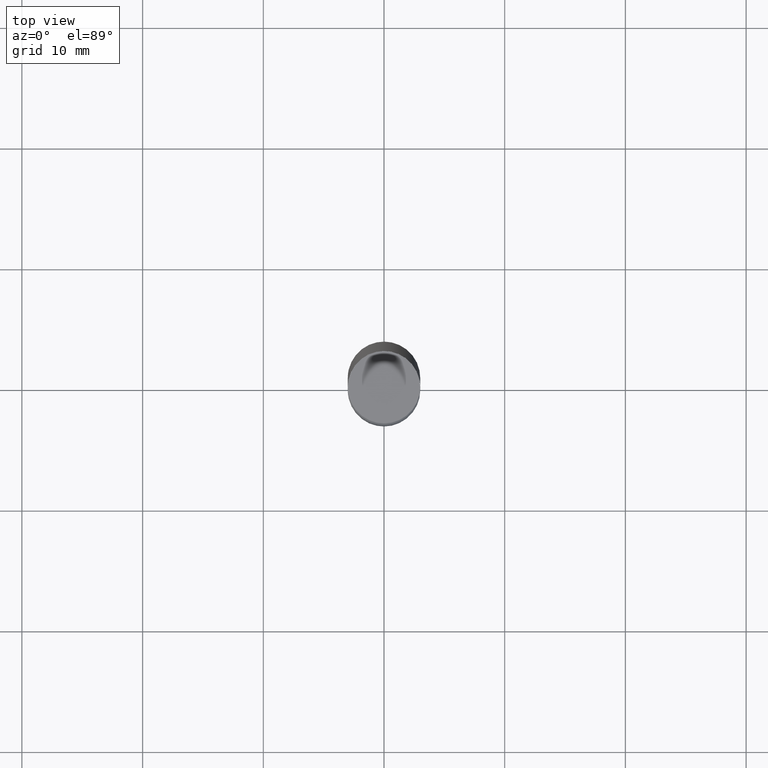
[diagram: clean part render]
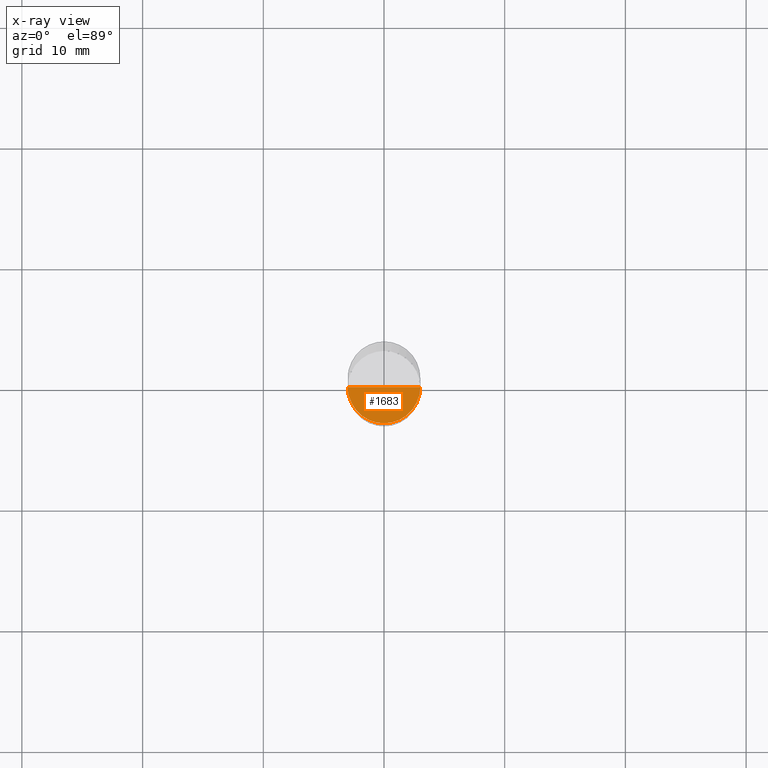
[diagram: x-ray — body ghosted, one internal face saturated and labeled with its STEP entity id]
A machine part, top view, then the same camera in x-ray: the body is ghosted and one INTERNAL B-rep face — a face not visible from any outside direction — is saturated and labeled: STEP entity #1683.
In plain terms, the highlighted face is a freeform B-spline surface patch.
Its self-contained STEP definition (entity closure, byte-faithful):
#1490=CARTESIAN_POINT('',(3.0,0.0,0.0));
#1494=CARTESIAN_POINT('',(-3.0,0.0,0.0));
#1495=CARTESIAN_POINT('',(0.0,0.0,0.0));
#1511=CARTESIAN_POINT('',(-3.0,-3.0,0.0));
#1512=CARTESIAN_POINT('',(0.0,-3.0,0.0));
#1513=CARTESIAN_POINT('',(3.0,-3.0,0.0));
#1668=(
BOUNDED_SURFACE()
B_SPLINE_SURFACE(1,2,(
(#1494,#1511,#1512,#1513,#1490),
(#1495,#1495,#1495,#1495,#1495)
), .UNSPECIFIED.,.F.,.F.,.F.)
B_SPLINE_SURFACE_WITH_KNOTS((2,2),(3,2,3),(
0.0,1.0),(
0.0,0.5,1.0), .UNSPECIFIED.)
GEOMETRIC_REPRESENTATION_ITEM()
RATIONAL_B_SPLINE_SURFACE(((1.0,0.707106781187,1.0,0.707106781187,1.0),
(1.0,0.707106781187,1.0,0.707106781187,1.0)
))
REPRESENTATION_ITEM('')
SURFACE()
);
#1669=(
BOUNDED_CURVE()
B_SPLINE_CURVE(1,(#1495,#1490),.UNSPECIFIED.,.F.,.F.)
B_SPLINE_CURVE_WITH_KNOTS((2,2),
(0.0,1.0),.UNSPECIFIED.)
CURVE()
GEOMETRIC_REPRESENTATION_ITEM()
RATIONAL_B_SPLINE_CURVE((1.0,1.0))
REPRESENTATION_ITEM('')
);
#1670=(
BOUNDED_CURVE()
B_SPLINE_CURVE(2,(#1490,#1513,#1512,#1511,#1494),.UNSPECIFIED.,.F.,.F.)
B_SPLINE_CURVE_WITH_KNOTS((3,2,3),
(0.0,0.5,1.0),.UNSPECIFIED.)
CURVE()
GEOMETRIC_REPRESENTATION_ITEM()
RATIONAL_B_SPLINE_CURVE((1.0,0.707106781187,1.0,0.707106781187,1.0))
REPRESENTATION_ITEM('')
);
#1671=(
BOUNDED_CURVE()
B_SPLINE_CURVE(1,(#1494,#1495),.UNSPECIFIED.,.F.,.F.)
B_SPLINE_CURVE_WITH_KNOTS((2,2),
(0.0,1.0),.UNSPECIFIED.)
CURVE()
GEOMETRIC_REPRESENTATION_ITEM()
RATIONAL_B_SPLINE_CURVE((1.0,1.0))
REPRESENTATION_ITEM('')
);
#1672=VERTEX_POINT('',#1490);
#1673=VERTEX_POINT('',#1494);
#1674=VERTEX_POINT('',#1495);
#1675=EDGE_CURVE('',#1674,#1672,#1669,.T.);
#1676=EDGE_CURVE('',#1672,#1673,#1670,.T.);
#1677=EDGE_CURVE('',#1673,#1674,#1671,.T.);
#1678=ORIENTED_EDGE('',*,*,#1675,.T.);
#1679=ORIENTED_EDGE('',*,*,#1676,.T.);
#1680=ORIENTED_EDGE('',*,*,#1677,.T.);
#1681=EDGE_LOOP('',(#1678,#1679,#1680));
#1682=FACE_OUTER_BOUND('',#1681,.T.);
#1683=ADVANCED_FACE('',(#1682),#1668,.T.);